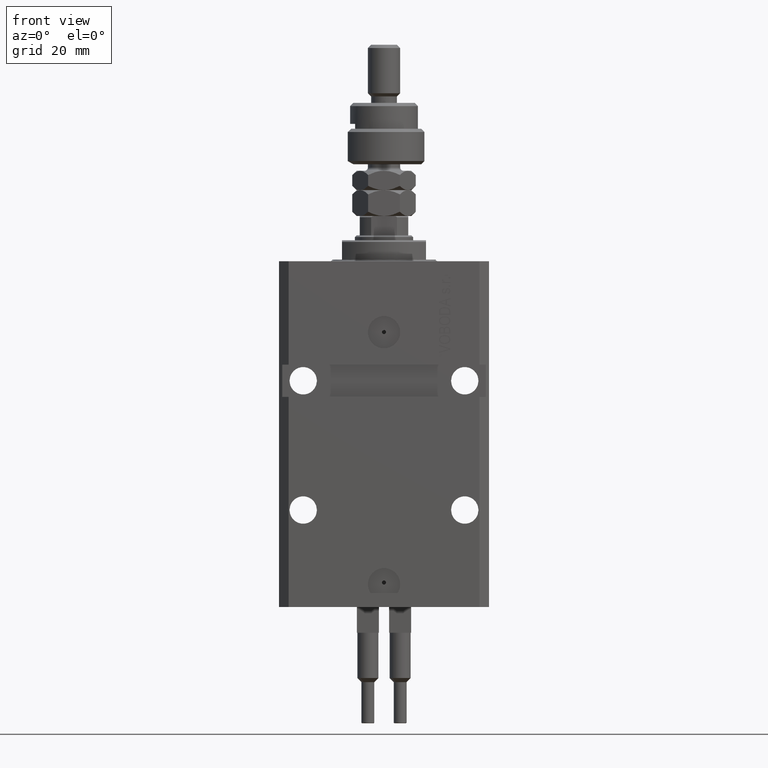
[diagram: clean part render]
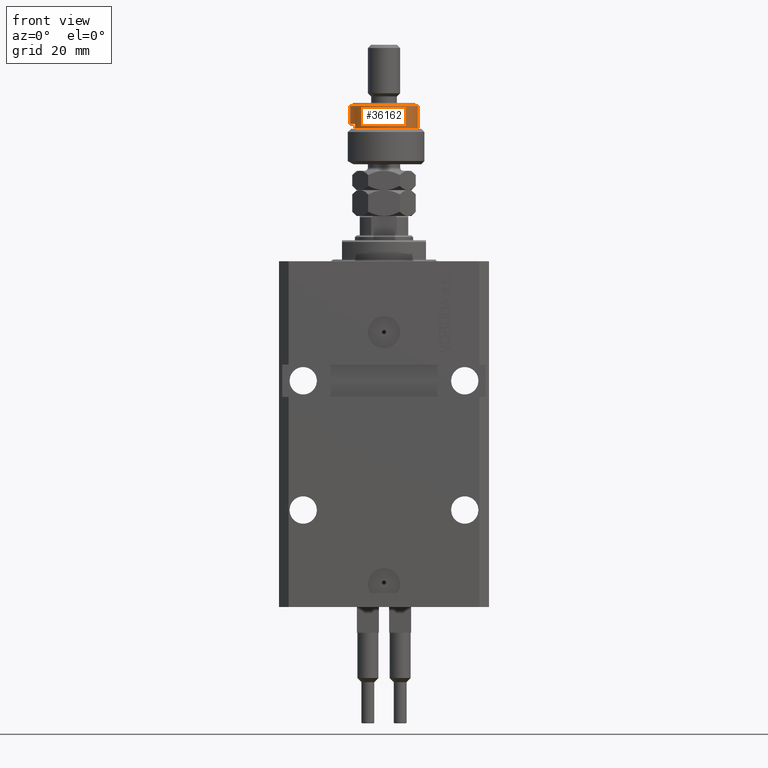
[diagram: same view with one face highlighted and labeled with its STEP entity id]
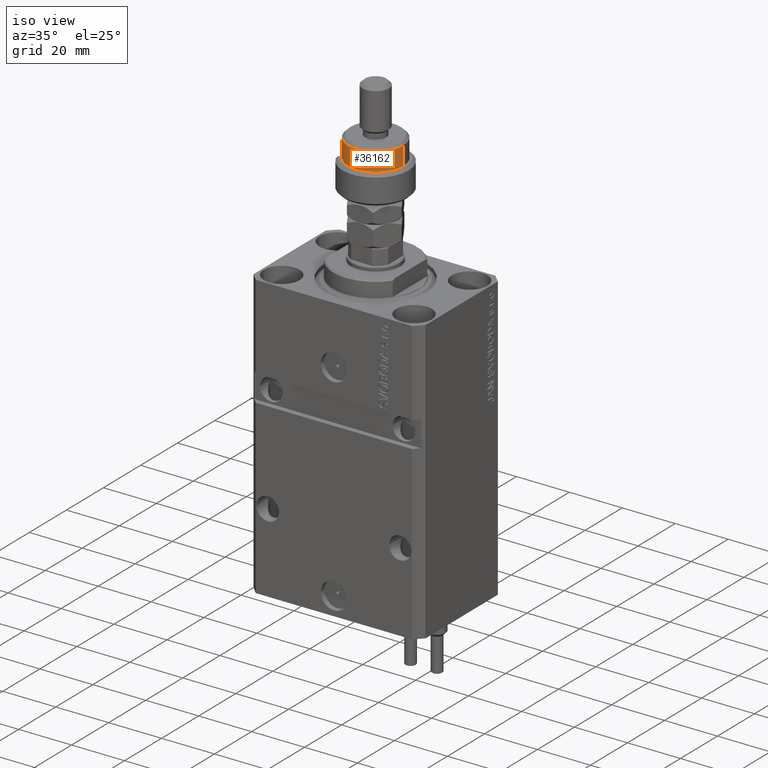
[diagram: same view with one face highlighted and labeled with its STEP entity id]
A machine part, front view. The second image highlights one B-rep face of the part: STEP entity #36162.
A second angle (iso view) of the same face is appended — the face is thin or edge-on in the first view.
In plain terms, the highlighted cylindrical surface (edge-blend (fillet) strip) has radius 10.5 mm, axis along (-0, -0, -1).
Its self-contained STEP definition (entity closure, byte-faithful):
#1389 = DIRECTION ( 'NONE',  ( 0.000000000000000000, 0.000000000000000000, -1.000000000000000000 ) ) ;
#2448 = CARTESIAN_POINT ( 'NONE',  ( -8.944271909999159220, -5.500000000000000000, 11.00000000000000000 ) ) ;
#2996 = EDGE_CURVE ( 'NONE', #36255, #33727, #14524, .T. ) ;
#4190 = CARTESIAN_POINT ( 'NONE',  ( 10.50000000000000000, 1.285879139104720831E-15, 19.00000000000000000 ) ) ;
#5917 = CARTESIAN_POINT ( 'NONE',  ( -10.50000000000000000, 0.000000000000000000, 12.50000000000000000 ) ) ;
#8106 = CIRCLE ( 'NONE', #33826, 10.50000000000000000 ) ;
#8144 = VERTEX_POINT ( 'NONE', #49196 ) ;
#8842 = CARTESIAN_POINT ( 'NONE',  ( -10.50000000000000000, 0.000000000000000000, 17.99999999999999645 ) ) ;
#9030 = AXIS2_PLACEMENT_3D ( 'NONE', #49457, #24757, #37513 ) ;
#11574 = VECTOR ( 'NONE', #50675, 1000.000000000000000 ) ;
#12172 = DIRECTION ( 'NONE',  ( -1.000000000000000000, 0.000000000000000000, 0.000000000000000000 ) ) ;
#12323 = ORIENTED_EDGE ( 'NONE', *, *, #34463, .T. ) ;
#12860 = ORIENTED_EDGE ( 'NONE', *, *, #50543, .T. ) ;
#14524 = CIRCLE ( 'NONE', #20384, 10.50000000000000000 ) ;
#15504 = LINE ( 'NONE', #40894, #40806 ) ;
#15608 = EDGE_CURVE ( 'NONE', #8144, #33727, #47552, .T. ) ;
#16739 = FACE_OUTER_BOUND ( 'NONE', #18658, .T. ) ;
#16795 = ORIENTED_EDGE ( 'NONE', *, *, #17732, .F. ) ;
#17185 = DIRECTION ( 'NONE',  ( 1.000000000000000000, 0.000000000000000000, 0.000000000000000000 ) ) ;
#17329 = DIRECTION ( 'NONE',  ( -0.000000000000000000, -0.000000000000000000, -1.000000000000000000 ) ) ;
#17732 = EDGE_CURVE ( 'NONE', #24309, #32474, #19967, .T. ) ;
#18658 = EDGE_LOOP ( 'NONE', ( #46648, #37915, #12323, #16795, #12860, #44169 ) ) ;
#19768 = DIRECTION ( 'NONE',  ( 1.000000000000000000, 0.000000000000000000, 0.000000000000000000 ) ) ;
#19967 = CIRCLE ( 'NONE', #32398, 10.50000000000000000 ) ;
#20384 = AXIS2_PLACEMENT_3D ( 'NONE', #47577, #26772, #19768 ) ;
#21083 = CARTESIAN_POINT ( 'NONE',  ( 0.000000000000000000, 0.000000000000000000, 17.99999999999999645 ) ) ;
#23333 = CARTESIAN_POINT ( 'NONE',  ( 0.000000000000000000, 0.000000000000000000, 12.50000000000000000 ) ) ;
#24309 = VERTEX_POINT ( 'NONE', #50096 ) ;
#24749 = DIRECTION ( 'NONE',  ( -0.000000000000000000, -0.000000000000000000, -1.000000000000000000 ) ) ;
#24757 = DIRECTION ( 'NONE',  ( -0.000000000000000000, -0.000000000000000000, -1.000000000000000000 ) ) ;
#26772 = DIRECTION ( 'NONE',  ( 0.000000000000000000, 0.000000000000000000, 1.000000000000000000 ) ) ;
#32398 = AXIS2_PLACEMENT_3D ( 'NONE', #23333, #46995, #12172 ) ;
#32474 = VERTEX_POINT ( 'NONE', #5917 ) ;
#33345 = EDGE_CURVE ( 'NONE', #8144, #41502, #8106, .T. ) ;
#33727 = VERTEX_POINT ( 'NONE', #40140 ) ;
#33826 = AXIS2_PLACEMENT_3D ( 'NONE', #21083, #1389, #17185 ) ;
#34463 = EDGE_CURVE ( 'NONE', #41502, #32474, #40214, .T. ) ;
#36162 = ADVANCED_FACE ( 'NONE', ( #16739 ), #48437, .T. ) ;
#36255 = VERTEX_POINT ( 'NONE', #2448 ) ;
#37513 = DIRECTION ( 'NONE',  ( -1.000000000000000000, 0.000000000000000000, 0.000000000000000000 ) ) ;
#37915 = ORIENTED_EDGE ( 'NONE', *, *, #33345, .T. ) ;
#40140 = CARTESIAN_POINT ( 'NONE',  ( 10.50000000000000000, 1.285879139104720831E-15, 11.00000000000000000 ) ) ;
#40214 = LINE ( 'NONE', #40478, #48814 ) ;
#40478 = CARTESIAN_POINT ( 'NONE',  ( -10.50000000000000000, 0.000000000000000000, 19.00000000000000000 ) ) ;
#40806 = VECTOR ( 'NONE', #24749, 1000.000000000000000 ) ;
#40894 = CARTESIAN_POINT ( 'NONE',  ( -8.944271909999159220, -5.500000000000000000, 19.00000000000000000 ) ) ;
#41502 = VERTEX_POINT ( 'NONE', #8842 ) ;
#44169 = ORIENTED_EDGE ( 'NONE', *, *, #2996, .T. ) ;
#46648 = ORIENTED_EDGE ( 'NONE', *, *, #15608, .F. ) ;
#46995 = DIRECTION ( 'NONE',  ( 0.000000000000000000, 0.000000000000000000, -1.000000000000000000 ) ) ;
#47552 = LINE ( 'NONE', #4190, #11574 ) ;
#47577 = CARTESIAN_POINT ( 'NONE',  ( 0.000000000000000000, 0.000000000000000000, 11.00000000000000000 ) ) ;
#48437 = CYLINDRICAL_SURFACE ( 'NONE', #9030, 10.50000000000000000 ) ;
#48814 = VECTOR ( 'NONE', #17329, 1000.000000000000000 ) ;
#49196 = CARTESIAN_POINT ( 'NONE',  ( 10.50000000000000000, 1.285879139104720831E-15, 17.99999999999999645 ) ) ;
#49457 = CARTESIAN_POINT ( 'NONE',  ( 0.000000000000000000, 0.000000000000000000, 19.00000000000000000 ) ) ;
#50096 = CARTESIAN_POINT ( 'NONE',  ( -8.944271909999159220, -5.500000000000000000, 12.50000000000000000 ) ) ;
#50543 = EDGE_CURVE ( 'NONE', #24309, #36255, #15504, .T. ) ;
#50675 = DIRECTION ( 'NONE',  ( -0.000000000000000000, -0.000000000000000000, -1.000000000000000000 ) ) ;